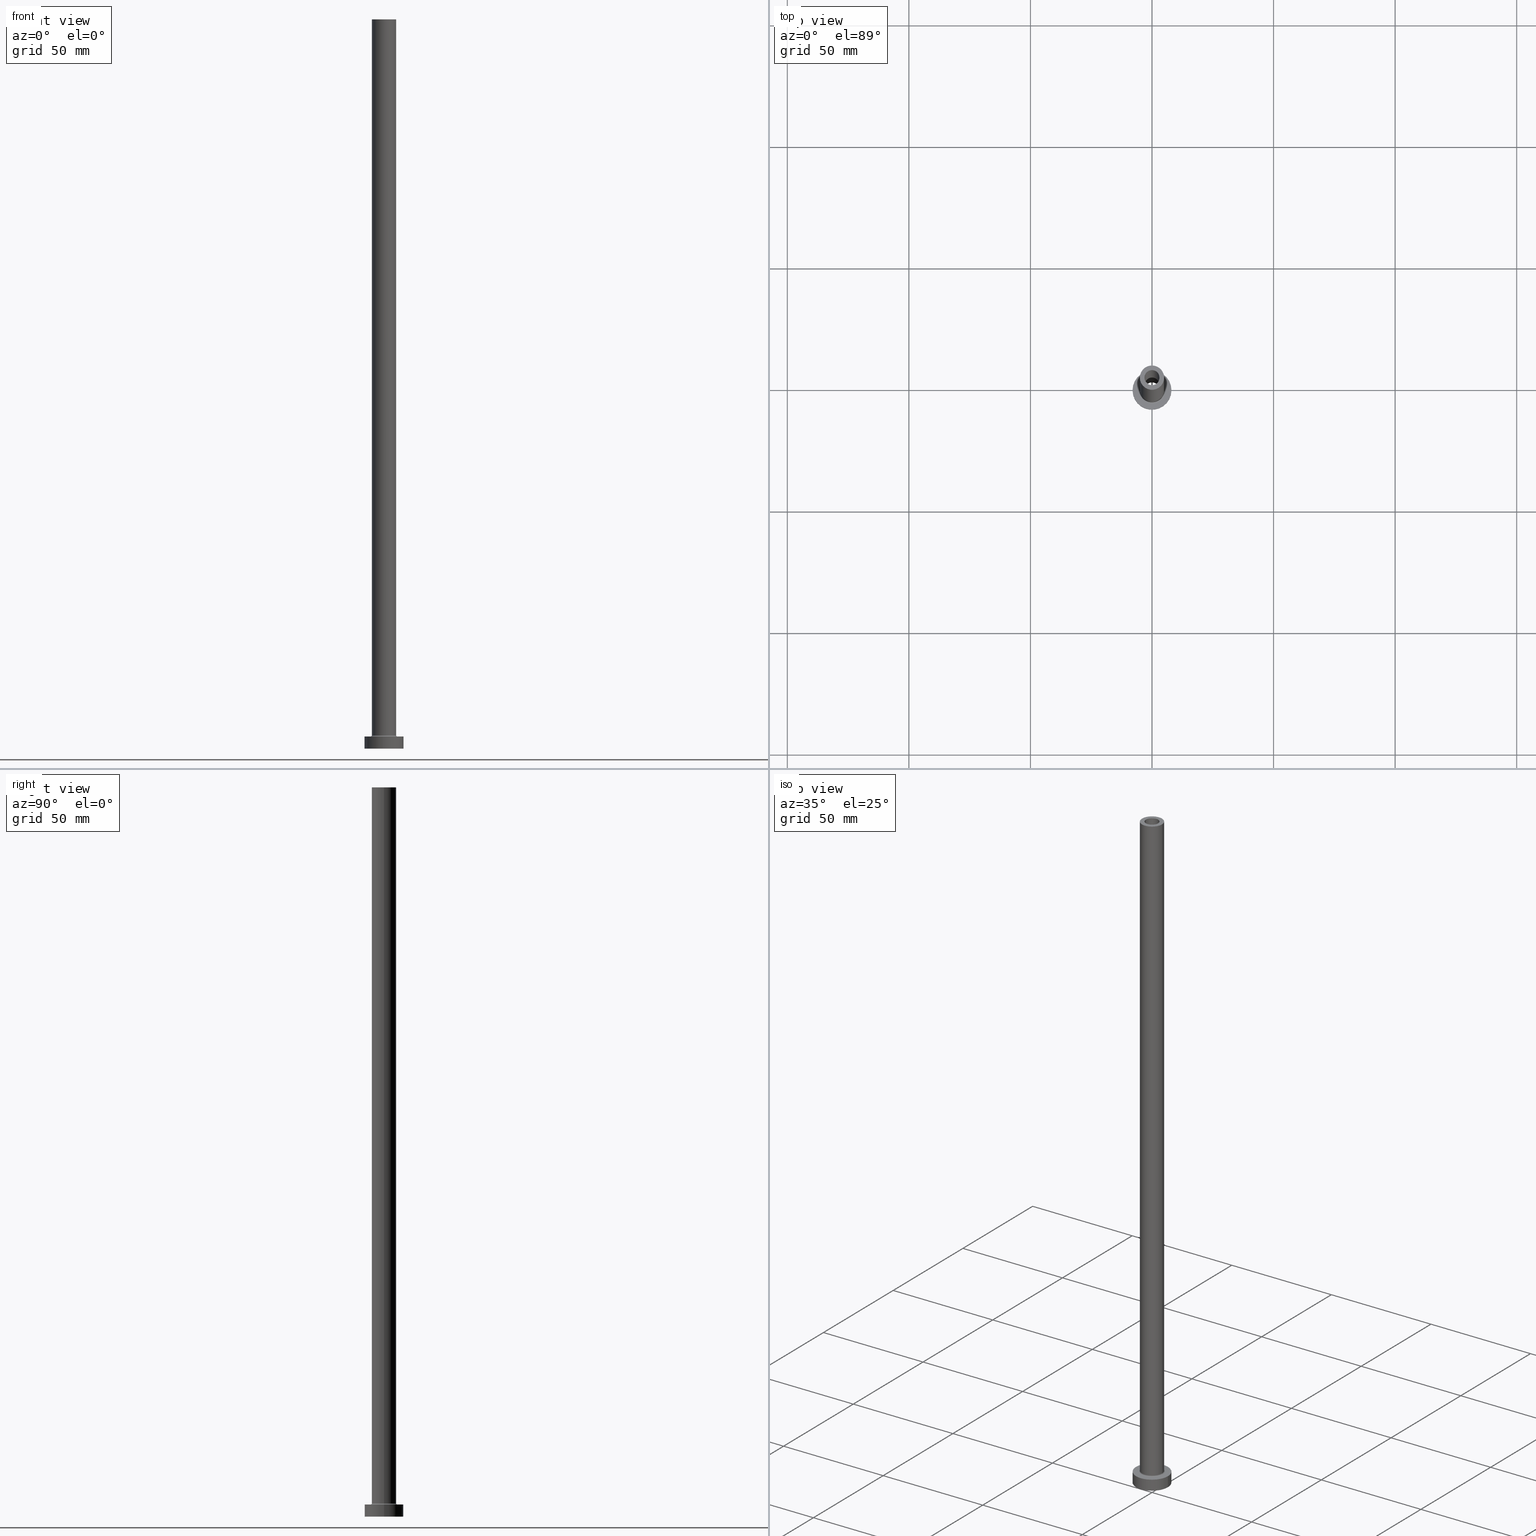
[diagram: canonical four-view strip — front | top / right | iso, engineering-drawing reading convention]
A machine part, canonical four-view strip (front | top / right | iso — engineering-drawing reading convention). The complete STEP part file that produces these views, byte-faithful:
ISO-10303-21;
HEADER;
FILE_DESCRIPTION (( 'STEP AP203' ),
    '1' );
FILE_NAME ('4100.STEP',
    '2023-02-13T14:31:02',
    ( '' ),
    ( '' ),
    'SwSTEP 2.0',
    'SolidWorks 2019',
    '' );
FILE_SCHEMA (( 'CONFIG_CONTROL_DESIGN' ));
ENDSEC;

DATA;
#1 =( NAMED_UNIT ( * ) PLANE_ANGLE_UNIT ( ) SI_UNIT ( $, .RADIAN. ) );
#2 = DIRECTION ( 'NONE',  ( -1.000000000000000000, 0.000000000000000000, 0.000000000000000000 ) ) ;
#3 = DIRECTION ( 'NONE',  ( -1.000000000000000000, 0.000000000000000000, 0.000000000000000000 ) ) ;
#4 = MECHANICAL_CONTEXT ( 'NONE', #278, 'mechanical' ) ;
#5 = DIRECTION ( 'NONE',  ( 0.000000000000000000, 0.000000000000000000, 1.000000000000000000 ) ) ;
#6 = CIRCLE ( 'NONE', #369, 3.250000000000000444 ) ;
#7 = CIRCLE ( 'NONE', #461, 3.250000000000000444 ) ;
#8 = EDGE_CURVE ( 'NONE', #89, #156, #245, .T. ) ;
#9 = DIRECTION ( 'NONE',  ( 1.000000000000000000, 0.000000000000000000, 0.000000000000000000 ) ) ;
#10 = ORIENTED_EDGE ( 'NONE', *, *, #404, .T. ) ;
#11 = DIRECTION ( 'NONE',  ( -0.000000000000000000, -0.000000000000000000, -1.000000000000000000 ) ) ;
#12 = ORIENTED_EDGE ( 'NONE', *, *, #162, .F. ) ;
#13 = EDGE_CURVE ( 'NONE', #120, #277, #287, .T. ) ;
#14 = EDGE_LOOP ( 'NONE', ( #82, #411, #16, #161 ) ) ;
#15 = CIRCLE ( 'NONE', #37, 0.5000000000000004441 ) ;
#16 = ORIENTED_EDGE ( 'NONE', *, *, #205, .T. ) ;
#17 = VERTEX_POINT ( 'NONE', #168 ) ;
#18 = ADVANCED_FACE ( 'NONE', ( #359 ), #32, .F. ) ;
#19 = EDGE_LOOP ( 'NONE', ( #272, #83 ) ) ;
#20 = CC_DESIGN_PERSON_AND_ORGANIZATION_ASSIGNMENT ( #76, #44, ( #105 ) ) ;
#21 = CARTESIAN_POINT ( 'NONE',  ( -5.000000000000000000, 0.000000000000000000, 300.0000000000000000 ) ) ;
#22 = CARTESIAN_POINT ( 'NONE',  ( 8.000000000000000000, 9.797174393178825657E-16, 5.000000000000000000 ) ) ;
#23 = DIRECTION ( 'NONE',  ( 1.000000000000000000, 0.000000000000000000, -0.000000000000000000 ) ) ;
#24 = CYLINDRICAL_SURFACE ( 'NONE', #347, 8.000000000000000000 ) ;
#25 = CYLINDRICAL_SURFACE ( 'NONE', #114, 8.000000000000000000 ) ;
#26 = LINE ( 'NONE', #365, #138 ) ;
#27 = UNCERTAINTY_MEASURE_WITH_UNIT (LENGTH_MEASURE( 1.000000000000000082E-05 ), #385, 'distance_accuracy_value', 'NONE');
#28 = CARTESIAN_POINT ( 'NONE',  ( -3.100000000000000089, 0.000000000000000000, 300.0000000000000000 ) ) ;
#29 = AXIS2_PLACEMENT_3D ( 'NONE', #417, #320, #323 ) ;
#30 = DIRECTION ( 'NONE',  ( 1.224646799147353207E-16, 1.000000000000000000, -0.000000000000000000 ) ) ;
#31 = DIRECTION ( 'NONE',  ( 0.000000000000000000, -1.000000000000000000, 0.000000000000000000 ) ) ;
#32 = CYLINDRICAL_SURFACE ( 'NONE', #428, 3.250000000000000444 ) ;
#33 = EDGE_CURVE ( 'NONE', #235, #117, #134, .T. ) ;
#34 = CARTESIAN_POINT ( 'NONE',  ( 0.000000000000000000, 0.000000000000000000, 0.000000000000000000 ) ) ;
#35 = DATE_TIME_ROLE ( 'creation_date' ) ;
#36 = CARTESIAN_POINT ( 'NONE',  ( 0.000000000000000000, 0.000000000000000000, 264.1923881554251352 ) ) ;
#37 = AXIS2_PLACEMENT_3D ( 'NONE', #420, #30, #427 ) ;
#38 = APPROVAL_PERSON_ORGANIZATION ( #296, #459, #39 ) ;
#39 = APPROVAL_ROLE ( '' ) ;
#40 = DIRECTION ( 'NONE',  ( 1.000000000000000000, 0.000000000000000000, 0.000000000000000000 ) ) ;
#41 = DATE_AND_TIME ( #432, #174 ) ;
#42 = DIRECTION ( 'NONE',  ( 1.000000000000000000, 0.000000000000000000, 0.000000000000000000 ) ) ;
#43 = ADVANCED_FACE ( 'NONE', ( #210, #248 ), #425, .T. ) ;
#44 = PERSON_AND_ORGANIZATION_ROLE ( 'creator' ) ;
#45 = DIRECTION ( 'NONE',  ( 1.000000000000000000, 0.000000000000000000, 0.000000000000000000 ) ) ;
#46 = VECTOR ( 'NONE', #360, 1000.000000000000000 ) ;
#47 = ORGANIZATION ( 'NEUR�EN�', 'NEUR�EN�', '' ) ;
#48 = CARTESIAN_POINT ( 'NONE',  ( 5.000000000000000000, 6.123233995736766282E-16, 300.0000000000000000 ) ) ;
#49 = SECURITY_CLASSIFICATION_LEVEL ( 'unclassified' ) ;
#50 = EDGE_CURVE ( 'NONE', #439, #386, #26, .T. ) ;
#51 = DIRECTION ( 'NONE',  ( -0.000000000000000000, -0.000000000000000000, -1.000000000000000000 ) ) ;
#52 = ORIENTED_EDGE ( 'NONE', *, *, #13, .T. ) ;
#53 = CC_DESIGN_PERSON_AND_ORGANIZATION_ASSIGNMENT ( #285, #426, ( #70 ) ) ;
#54 = ORIENTED_EDGE ( 'NONE', *, *, #382, .F. ) ;
#55 = AXIS2_PLACEMENT_3D ( 'NONE', #268, #51, #410 ) ;
#56 = EDGE_LOOP ( 'NONE', ( #304, #207, #383, #183 ) ) ;
#57 = ORIENTED_EDGE ( 'NONE', *, *, #260, .T. ) ;
#58 = ADVANCED_FACE ( 'NONE', ( #171 ), #125, .F. ) ;
#59 = DIRECTION ( 'NONE',  ( -0.000000000000000000, -0.000000000000000000, -1.000000000000000000 ) ) ;
#60 = CIRCLE ( 'NONE', #322, 5.500000000000000000 ) ;
#61 = FACE_OUTER_BOUND ( 'NONE', #333, .T. ) ;
#62 = CARTESIAN_POINT ( 'NONE',  ( -3.100000000000000089, 0.000000000000000000, 255.0000000000000000 ) ) ;
#63 = CARTESIAN_POINT ( 'NONE',  ( 0.000000000000000000, 0.000000000000000000, 300.0000000000000000 ) ) ;
#64 = DIRECTION ( 'NONE',  ( -0.000000000000000000, -0.000000000000000000, -1.000000000000000000 ) ) ;
#65 = DIRECTION ( 'NONE',  ( 0.000000000000000000, 0.000000000000000000, -1.000000000000000000 ) ) ;
#66 = CARTESIAN_POINT ( 'NONE',  ( 0.000000000000000000, 0.000000000000000000, 5.000000000000000000 ) ) ;
#67 = DIRECTION ( 'NONE',  ( -1.000000000000000000, 0.000000000000000000, 0.000000000000000000 ) ) ;
#68 = CIRCLE ( 'NONE', #381, 5.000000000000000000 ) ;
#69 = CARTESIAN_POINT ( 'NONE',  ( 0.000000000000000000, 0.000000000000000000, 0.000000000000000000 ) ) ;
#70 = PRODUCT_DEFINITION_FORMATION_WITH_SPECIFIED_SOURCE ( 'LIBOVOLN�', '', #80, .NOT_KNOWN. ) ;
#71 = DIRECTION ( 'NONE',  ( -0.000000000000000000, -0.000000000000000000, -1.000000000000000000 ) ) ;
#72 = CARTESIAN_POINT ( 'NONE',  ( 5.000000000000000000, 6.123233995736766282E-16, 300.0000000000000000 ) ) ;
#73 = CIRCLE ( 'NONE', #221, 3.250000000000000444 ) ;
#74 = ORIENTED_EDGE ( 'NONE', *, *, #416, .T. ) ;
#75 = LOCAL_TIME ( 15, 31, 2.000000000000000000, #225 ) ;
#76 = PERSON_AND_ORGANIZATION ( #396, #47 ) ;
#77 = APPLICATION_CONTEXT ( 'configuration controlled 3d designs of mechanical parts and assemblies' ) ;
#78 = CARTESIAN_POINT ( 'NONE',  ( 8.000000000000000000, 9.797174393178825657E-16, 0.000000000000000000 ) ) ;
#79 = AXIS2_PLACEMENT_3D ( 'NONE', #110, #328, #429 ) ;
#80 = PRODUCT ( '4100', '4100', '', ( #4 ) ) ;
#81 = SHAPE_DEFINITION_REPRESENTATION ( #204, #331 ) ;
#82 = ORIENTED_EDGE ( 'NONE', *, *, #398, .F. ) ;
#83 = ORIENTED_EDGE ( 'NONE', *, *, #398, .T. ) ;
#84 = ORIENTED_EDGE ( 'NONE', *, *, #281, .T. ) ;
#85 = VECTOR ( 'NONE', #452, 1000.000000000000000 ) ;
#86 = PERSON_AND_ORGANIZATION_ROLE ( 'classification_officer' ) ;
#87 = APPROVAL_PERSON_ORGANIZATION ( #350, #185, #231 ) ;
#88 = ADVANCED_FACE ( 'NONE', ( #280 ), #327, .F. ) ;
#89 = VERTEX_POINT ( 'NONE', #62 ) ;
#90 = EDGE_LOOP ( 'NONE', ( #203, #141 ) ) ;
#91 = DIRECTION ( 'NONE',  ( 1.000000000000000000, 0.000000000000000000, 0.000000000000000000 ) ) ;
#92 = CARTESIAN_POINT ( 'NONE',  ( 0.000000000000000000, 0.000000000000000000, 0.000000000000000000 ) ) ;
#93 = EDGE_CURVE ( 'NONE', #386, #414, #15, .T. ) ;
#94 = CIRCLE ( 'NONE', #79, 3.100000000000000089 ) ;
#95 = DIRECTION ( 'NONE',  ( 0.000000000000000000, 0.000000000000000000, 1.000000000000000000 ) ) ;
#96 = ORIENTED_EDGE ( 'NONE', *, *, #119, .T. ) ;
#97 = CARTESIAN_POINT ( 'NONE',  ( 0.000000000000000000, 0.000000000000000000, 300.0000000000000000 ) ) ;
#98 = EDGE_LOOP ( 'NONE', ( #437, #74, #353, #54 ) ) ;
#99 = DIRECTION ( 'NONE',  ( 1.000000000000000000, 0.000000000000000000, 0.000000000000000000 ) ) ;
#100 = DIRECTION ( 'NONE',  ( -1.000000000000000000, 0.000000000000000000, 0.000000000000000000 ) ) ;
#101 = VECTOR ( 'NONE', #142, 1000.000000000000000 ) ;
#102 = FACE_OUTER_BOUND ( 'NONE', #14, .T. ) ;
#103 = VERTEX_POINT ( 'NONE', #422 ) ;
#104 = CYLINDRICAL_SURFACE ( 'NONE', #454, 3.250000000000000444 ) ;
#105 = PRODUCT_DEFINITION ( 'NEZN�M�', '', #70, #164 ) ;
#106 = APPLICATION_PROTOCOL_DEFINITION ( 'international standard', 'config_control_design', 1994, #278 ) ;
#107 = AXIS2_PLACEMENT_3D ( 'NONE', #263, #196, #236 ) ;
#108 = PRODUCT_RELATED_PRODUCT_CATEGORY ( 'detail', '', ( #80 ) ) ;
#109 = FACE_OUTER_BOUND ( 'NONE', #376, .T. ) ;
#110 = CARTESIAN_POINT ( 'NONE',  ( 0.000000000000000000, 0.000000000000000000, 255.0000000000000000 ) ) ;
#111 = EDGE_CURVE ( 'NONE', #275, #117, #6, .T. ) ;
#112 = FACE_OUTER_BOUND ( 'NONE', #233, .T. ) ;
#113 = ORIENTED_EDGE ( 'NONE', *, *, #199, .T. ) ;
#114 = AXIS2_PLACEMENT_3D ( 'NONE', #247, #173, #390 ) ;
#115 = CC_DESIGN_APPROVAL ( #185, ( #442 ) ) ;
#116 = ORIENTED_EDGE ( 'NONE', *, *, #13, .F. ) ;
#117 = VERTEX_POINT ( 'NONE', #178 ) ;
#118 = COORDINATED_UNIVERSAL_TIME_OFFSET ( 1, 0, .AHEAD. ) ;
#119 = EDGE_CURVE ( 'NONE', #444, #277, #208, .T. ) ;
#120 = VERTEX_POINT ( 'NONE', #22 ) ;
#121 = AXIS2_PLACEMENT_3D ( 'NONE', #97, #95, #91 ) ;
#122 = FACE_OUTER_BOUND ( 'NONE', #230, .T. ) ;
#123 = ORIENTED_EDGE ( 'NONE', *, *, #8, .T. ) ;
#124 = LINE ( 'NONE', #241, #85 ) ;
#125 = CYLINDRICAL_SURFACE ( 'NONE', #441, 3.100000000000000089 ) ;
#126 = ADVANCED_FACE ( 'NONE', ( #102 ), #356, .T. ) ;
#127 = PLANE ( 'NONE',  #313 ) ;
#128 = DIRECTION ( 'NONE',  ( 0.000000000000000000, 0.000000000000000000, 1.000000000000000000 ) ) ;
#129 = AXIS2_PLACEMENT_3D ( 'NONE', #254, #59, #451 ) ;
#130 = DIRECTION ( 'NONE',  ( 1.000000000000000000, 0.000000000000000000, 0.000000000000000000 ) ) ;
#131 = CC_DESIGN_SECURITY_CLASSIFICATION ( #442, ( #70 ) ) ;
#132 = DIRECTION ( 'NONE',  ( -0.000000000000000000, -0.000000000000000000, -1.000000000000000000 ) ) ;
#133 = CYLINDRICAL_SURFACE ( 'NONE', #246, 5.000000000000000000 ) ;
#134 = LINE ( 'NONE', #453, #440 ) ;
#135 = PERSON_AND_ORGANIZATION ( #396, #47 ) ;
#136 = EDGE_CURVE ( 'NONE', #117, #275, #73, .T. ) ;
#137 = DIRECTION ( 'NONE',  ( 1.000000000000000000, 0.000000000000000000, 0.000000000000000000 ) ) ;
#138 = VECTOR ( 'NONE', #132, 1000.000000000000000 ) ;
#139 = LOCAL_TIME ( 15, 31, 2.000000000000000000, #118 ) ;
#140 = CARTESIAN_POINT ( 'NONE',  ( -3.250000000000000444, 0.000000000000000000, 255.0000000000000000 ) ) ;
#141 = ORIENTED_EDGE ( 'NONE', *, *, #295, .T. ) ;
#142 = DIRECTION ( 'NONE',  ( -0.000000000000000000, -0.000000000000000000, -1.000000000000000000 ) ) ;
#143 = ADVANCED_FACE ( 'NONE', ( #357 ), #24, .T. ) ;
#144 = ORIENTED_EDGE ( 'NONE', *, *, #213, .T. ) ;
#145 = CARTESIAN_POINT ( 'NONE',  ( 0.000000000000000000, 0.000000000000000000, 0.000000000000000000 ) ) ;
#146 = DIRECTION ( 'NONE',  ( 0.000000000000000000, 0.000000000000000000, 1.000000000000000000 ) ) ;
#147 = CIRCLE ( 'NONE', #330, 5.000000000000000000 ) ;
#148 = ORIENTED_EDGE ( 'NONE', *, *, #199, .F. ) ;
#149 = AXIS2_PLACEMENT_3D ( 'NONE', #167, #421, #99 ) ;
#150 = DATE_TIME_ROLE ( 'classification_date' ) ;
#151 = ORIENTED_EDGE ( 'NONE', *, *, #213, .F. ) ;
#152 = CC_DESIGN_DATE_AND_TIME_ASSIGNMENT ( #41, #35, ( #105 ) ) ;
#153 = DIRECTION ( 'NONE',  ( 0.000000000000000000, 0.000000000000000000, 1.000000000000000000 ) ) ;
#154 = VERTEX_POINT ( 'NONE', #224 ) ;
#155 = FACE_BOUND ( 'NONE', #265, .T. ) ;
#156 = VERTEX_POINT ( 'NONE', #374 ) ;
#157 = AXIS2_PLACEMENT_3D ( 'NONE', #69, #418, #137 ) ;
#158 = CC_DESIGN_APPROVAL ( #342, ( #70 ) ) ;
#159 = MANIFOLD_SOLID_BREP ( 'Odebrat vysunut�m4', #305 ) ;
#160 = CARTESIAN_POINT ( 'NONE',  ( 3.250000000000000444, 3.980102097228898231E-16, 264.1923881554251352 ) ) ;
#161 = ORIENTED_EDGE ( 'NONE', *, *, #50, .F. ) ;
#162 = EDGE_CURVE ( 'NONE', #120, #450, #297, .T. ) ;
#163 = EDGE_LOOP ( 'NONE', ( #384, #237, #250, #308 ) ) ;
#164 = DESIGN_CONTEXT ( 'detailed design', #77, 'design' ) ;
#165 = ORIENTED_EDGE ( 'NONE', *, *, #382, .T. ) ;
#166 = AXIS2_PLACEMENT_3D ( 'NONE', #291, #335, #436 ) ;
#167 = CARTESIAN_POINT ( 'NONE',  ( 0.000000000000000000, 0.000000000000000000, 300.0000000000000000 ) ) ;
#168 = CARTESIAN_POINT ( 'NONE',  ( 5.500000000000000000, 0.000000000000000000, 5.000000000000002665 ) ) ;
#169 = EDGE_LOOP ( 'NONE', ( #116, #186, #57, #96 ) ) ;
#170 = CARTESIAN_POINT ( 'NONE',  ( 0.000000000000000000, 0.000000000000000000, 5.500000000000005329 ) ) ;
#171 = FACE_OUTER_BOUND ( 'NONE', #98, .T. ) ;
#172 = AXIS2_PLACEMENT_3D ( 'NONE', #407, #234, #198 ) ;
#173 = DIRECTION ( 'NONE',  ( -0.000000000000000000, -0.000000000000000000, -1.000000000000000000 ) ) ;
#174 = LOCAL_TIME ( 15, 31, 2.000000000000000000, #223 ) ;
#175 = DIRECTION ( 'NONE',  ( 1.000000000000000000, 0.000000000000000000, -0.000000000000000000 ) ) ;
#176 = EDGE_CURVE ( 'NONE', #235, #154, #7, .T. ) ;
#177 = CARTESIAN_POINT ( 'NONE',  ( 0.000000000000000000, 0.000000000000000000, 300.0000000000000000 ) ) ;
#178 = CARTESIAN_POINT ( 'NONE',  ( -3.250000000000000444, 0.000000000000000000, 0.000000000000000000 ) ) ;
#179 = PERSON_AND_ORGANIZATION_ROLE ( 'creator' ) ;
#180 = CIRCLE ( 'NONE', #149, 5.000000000000000000 ) ;
#181 = EDGE_CURVE ( 'NONE', #154, #235, #307, .T. ) ;
#182 = DIRECTION ( 'NONE',  ( 0.000000000000000000, 0.000000000000000000, 1.000000000000000000 ) ) ;
#183 = ORIENTED_EDGE ( 'NONE', *, *, #404, .F. ) ;
#184 = CALENDAR_DATE ( 2023, 13, 2 ) ;
#185 = APPROVAL ( #270, 'NEUR�EN�' ) ;
#186 = ORIENTED_EDGE ( 'NONE', *, *, #281, .F. ) ;
#187 = APPLICATION_PROTOCOL_DEFINITION ( 'international standard', 'config_control_design', 1994, #77 ) ;
#188 = CARTESIAN_POINT ( 'NONE',  ( 0.000000000000000000, 0.000000000000000000, 255.0000000000000000 ) ) ;
#189 = APPROVAL_DATE_TIME ( #366, #342 ) ;
#190 = CARTESIAN_POINT ( 'NONE',  ( 0.000000000000000000, 0.000000000000000000, 5.000000000000000000 ) ) ;
#191 = AXIS2_PLACEMENT_3D ( 'NONE', #316, #321, #100 ) ;
#192 = AXIS2_PLACEMENT_3D ( 'NONE', #145, #217, #399 ) ;
#193 = CALENDAR_DATE ( 2023, 13, 2 ) ;
#194 = EDGE_LOOP ( 'NONE', ( #219, #344 ) ) ;
#195 = COORDINATED_UNIVERSAL_TIME_OFFSET ( 1, 0, .AHEAD. ) ;
#196 = DIRECTION ( 'NONE',  ( 0.000000000000000000, 0.000000000000000000, 1.000000000000000000 ) ) ;
#197 = ORIENTED_EDGE ( 'NONE', *, *, #181, .T. ) ;
#198 = DIRECTION ( 'NONE',  ( 1.000000000000000000, 0.000000000000000000, -0.000000000000000000 ) ) ;
#199 = EDGE_CURVE ( 'NONE', #156, #89, #94, .T. ) ;
#200 = ORIENTED_EDGE ( 'NONE', *, *, #295, .F. ) ;
#201 = AXIS2_PLACEMENT_3D ( 'NONE', #34, #182, #298 ) ;
#202 = VERTEX_POINT ( 'NONE', #72 ) ;
#203 = ORIENTED_EDGE ( 'NONE', *, *, #312, .T. ) ;
#204 = PRODUCT_DEFINITION_SHAPE ( 'NONE', 'NONE',  #105 ) ;
#205 = EDGE_CURVE ( 'NONE', #314, #386, #68, .T. ) ;
#206 = DIRECTION ( 'NONE',  ( 0.000000000000000000, 0.000000000000000000, 1.000000000000000000 ) ) ;
#207 = ORIENTED_EDGE ( 'NONE', *, *, #93, .T. ) ;
#208 = CIRCLE ( 'NONE', #157, 8.000000000000000000 ) ;
#209 = DIRECTION ( 'NONE',  ( 1.000000000000000000, 0.000000000000000000, 0.000000000000000000 ) ) ;
#210 = FACE_BOUND ( 'NONE', #90, .T. ) ;
#211 = FACE_OUTER_BOUND ( 'NONE', #56, .T. ) ;
#212 = DIRECTION ( 'NONE',  ( -1.000000000000000000, 0.000000000000000000, 0.000000000000000000 ) ) ;
#213 = EDGE_CURVE ( 'NONE', #277, #444, #375, .T. ) ;
#214 = AXIS2_PLACEMENT_3D ( 'NONE', #243, #31, #457 ) ;
#215 = CARTESIAN_POINT ( 'NONE',  ( 0.000000000000000000, 0.000000000000000000, 255.0000000000000000 ) ) ;
#216 = PERSON_AND_ORGANIZATION ( #396, #47 ) ;
#217 = DIRECTION ( 'NONE',  ( 0.000000000000000000, 0.000000000000000000, 1.000000000000000000 ) ) ;
#218 = CARTESIAN_POINT ( 'NONE',  ( 0.000000000000000000, 0.000000000000000000, 5.500000000000005329 ) ) ;
#219 = ORIENTED_EDGE ( 'NONE', *, *, #136, .F. ) ;
#220 = CALENDAR_DATE ( 2023, 13, 2 ) ;
#221 = AXIS2_PLACEMENT_3D ( 'NONE', #92, #244, #209 ) ;
#222 = DIRECTION ( 'NONE',  ( 1.000000000000000000, 0.000000000000000000, 0.000000000000000000 ) ) ;
#223 = COORDINATED_UNIVERSAL_TIME_OFFSET ( 1, 0, .AHEAD. ) ;
#224 = CARTESIAN_POINT ( 'NONE',  ( 3.250000000000000444, 3.980102097228898231E-16, 255.0000000000000000 ) ) ;
#225 = COORDINATED_UNIVERSAL_TIME_OFFSET ( 1, 0, .AHEAD. ) ;
#226 = FACE_OUTER_BOUND ( 'NONE', #163, .T. ) ;
#227 = ADVANCED_FACE ( 'NONE', ( #226 ), #104, .F. ) ;
#228 = VECTOR ( 'NONE', #11, 1000.000000000000000 ) ;
#229 = LOCAL_TIME ( 15, 31, 2.000000000000000000, #402 ) ;
#230 = EDGE_LOOP ( 'NONE', ( #299, #290 ) ) ;
#231 = APPROVAL_ROLE ( '' ) ;
#232 = PLANE ( 'NONE',  #107 ) ;
#233 = EDGE_LOOP ( 'NONE', ( #446, #151 ) ) ;
#234 = DIRECTION ( 'NONE',  ( 0.000000000000000000, 0.000000000000000000, 1.000000000000000000 ) ) ;
#235 = VERTEX_POINT ( 'NONE', #140 ) ;
#236 = DIRECTION ( 'NONE',  ( 1.000000000000000000, 0.000000000000000000, -0.000000000000000000 ) ) ;
#237 = ORIENTED_EDGE ( 'NONE', *, *, #339, .T. ) ;
#238 = TOROIDAL_SURFACE ( 'NONE', #29, 5.500000000000000000, 0.5000000000000000000 ) ;
#239 = DIRECTION ( 'NONE',  ( 1.000000000000000000, 0.000000000000000000, 0.000000000000000000 ) ) ;
#240 = ORIENTED_EDGE ( 'NONE', *, *, #50, .T. ) ;
#241 = CARTESIAN_POINT ( 'NONE',  ( -3.100000000000000089, 0.000000000000000000, 300.0000000000000000 ) ) ;
#242 = ORIENTED_EDGE ( 'NONE', *, *, #303, .F. ) ;
#243 = CARTESIAN_POINT ( 'NONE',  ( 5.500000000000000000, 0.000000000000000000, 5.500000000000005329 ) ) ;
#244 = DIRECTION ( 'NONE',  ( -0.000000000000000000, -0.000000000000000000, -1.000000000000000000 ) ) ;
#245 = CIRCLE ( 'NONE', #388, 3.100000000000000089 ) ;
#246 = AXIS2_PLACEMENT_3D ( 'NONE', #63, #358, #67 ) ;
#247 = CARTESIAN_POINT ( 'NONE',  ( 0.000000000000000000, 0.000000000000000000, 5.000000000000000000 ) ) ;
#248 = FACE_OUTER_BOUND ( 'NONE', #267, .T. ) ;
#249 = CARTESIAN_POINT ( 'NONE',  ( -8.000000000000000000, 0.000000000000000000, 0.000000000000000000 ) ) ;
#250 = ORIENTED_EDGE ( 'NONE', *, *, #111, .T. ) ;
#251 = LINE ( 'NONE', #276, #46 ) ;
#252 = DIRECTION ( 'NONE',  ( 1.000000000000000000, 0.000000000000000000, 0.000000000000000000 ) ) ;
#253 = TOROIDAL_SURFACE ( 'NONE', #355, 5.500000000000000000, 0.5000000000000000000 ) ;
#254 = CARTESIAN_POINT ( 'NONE',  ( 0.000000000000000000, 0.000000000000000000, 300.0000000000000000 ) ) ;
#255 = CC_DESIGN_PERSON_AND_ORGANIZATION_ASSIGNMENT ( #292, #334, ( #80 ) ) ;
#256 =( NAMED_UNIT ( * ) SI_UNIT ( $, .STERADIAN. ) SOLID_ANGLE_UNIT ( ) );
#257 = APPROVAL_STATUS ( 'not_yet_approved' ) ;
#258 = AXIS2_PLACEMENT_3D ( 'NONE', #190, #338, #9 ) ;
#259 = APPROVAL_STATUS ( 'not_yet_approved' ) ;
#260 = EDGE_CURVE ( 'NONE', #450, #444, #433, .T. ) ;
#261 = CARTESIAN_POINT ( 'NONE',  ( 3.250000000000000444, 3.980102097228898231E-16, 0.000000000000000000 ) ) ;
#262 = PERSON_AND_ORGANIZATION ( #396, #47 ) ;
#263 = CARTESIAN_POINT ( 'NONE',  ( 0.000000000000000000, 0.000000000000000000, 0.000000000000000000 ) ) ;
#264 = CIRCLE ( 'NONE', #448, 3.100000000000000089 ) ;
#265 = EDGE_LOOP ( 'NONE', ( #242, #380 ) ) ;
#266 = ADVANCED_FACE ( 'NONE', ( #109 ), #253, .F. ) ;
#267 = EDGE_LOOP ( 'NONE', ( #84, #434 ) ) ;
#268 = CARTESIAN_POINT ( 'NONE',  ( 0.000000000000000000, 0.000000000000000000, 5.000000000000000000 ) ) ;
#269 = EDGE_LOOP ( 'NONE', ( #12, #52, #144, #294 ) ) ;
#270 = APPROVAL_STATUS ( 'not_yet_approved' ) ;
#271 = DIRECTION ( 'NONE',  ( 1.000000000000000000, 0.000000000000000000, 0.000000000000000000 ) ) ;
#272 = ORIENTED_EDGE ( 'NONE', *, *, #456, .T. ) ;
#273 = AXIS2_PLACEMENT_3D ( 'NONE', #170, #387, #130 ) ;
#274 = CARTESIAN_POINT ( 'NONE',  ( -5.000000000000000000, 0.000000000000000000, 5.500000000000005329 ) ) ;
#275 = VERTEX_POINT ( 'NONE', #261 ) ;
#276 = CARTESIAN_POINT ( 'NONE',  ( 3.100000000000000089, 3.796405077356793932E-16, 300.0000000000000000 ) ) ;
#277 = VERTEX_POINT ( 'NONE', #78 ) ;
#278 = APPLICATION_CONTEXT ( 'configuration controlled 3d designs of mechanical parts and assemblies' ) ;
#279 = CARTESIAN_POINT ( 'NONE',  ( -5.500000000000000000, 6.735557395310442023E-16, 5.000000000000002665 ) ) ;
#280 = FACE_OUTER_BOUND ( 'NONE', #309, .T. ) ;
#281 = EDGE_CURVE ( 'NONE', #450, #120, #288, .T. ) ;
#282 = CARTESIAN_POINT ( 'NONE',  ( 0.000000000000000000, 0.000000000000000000, 300.0000000000000000 ) ) ;
#283 = FACE_OUTER_BOUND ( 'NONE', #269, .T. ) ;
#284 = CARTESIAN_POINT ( 'NONE',  ( 0.000000000000000000, 0.000000000000000000, 0.000000000000000000 ) ) ;
#285 = PERSON_AND_ORGANIZATION ( #396, #47 ) ;
#286 = EDGE_CURVE ( 'NONE', #202, #314, #301, .T. ) ;
#287 = LINE ( 'NONE', #458, #447 ) ;
#288 = CIRCLE ( 'NONE', #258, 8.000000000000000000 ) ;
#289 = DIRECTION ( 'NONE',  ( 0.000000000000000000, 0.000000000000000000, 1.000000000000000000 ) ) ;
#290 = ORIENTED_EDGE ( 'NONE', *, *, #181, .F. ) ;
#291 = CARTESIAN_POINT ( 'NONE',  ( 0.000000000000000000, 0.000000000000000000, 5.000000000000000000 ) ) ;
#292 = PERSON_AND_ORGANIZATION ( #396, #47 ) ;
#293 = CARTESIAN_POINT ( 'NONE',  ( 0.000000000000000000, 0.000000000000000000, 5.000000000000000000 ) ) ;
#294 = ORIENTED_EDGE ( 'NONE', *, *, #260, .F. ) ;
#295 = EDGE_CURVE ( 'NONE', #414, #17, #337, .T. ) ;
#296 = PERSON_AND_ORGANIZATION ( #396, #47 ) ;
#297 = CIRCLE ( 'NONE', #166, 8.000000000000000000 ) ;
#298 = DIRECTION ( 'NONE',  ( 1.000000000000000000, 0.000000000000000000, 0.000000000000000000 ) ) ;
#299 = ORIENTED_EDGE ( 'NONE', *, *, #176, .F. ) ;
#300 = CC_DESIGN_PERSON_AND_ORGANIZATION_ASSIGNMENT ( #135, #179, ( #70 ) ) ;
#301 = LINE ( 'NONE', #48, #228 ) ;
#302 = CARTESIAN_POINT ( 'NONE',  ( 5.000000000000000000, 6.123233995736766282E-16, 5.500000000000005329 ) ) ;
#303 = EDGE_CURVE ( 'NONE', #379, #103, #264, .T. ) ;
#304 = ORIENTED_EDGE ( 'NONE', *, *, #409, .F. ) ;
#305 = CLOSED_SHELL ( 'NONE', ( #58, #227, #371, #126, #435, #143, #43, #319, #449, #325, #266, #18, #424, #88 ) ) ;
#306 = FACE_OUTER_BOUND ( 'NONE', #19, .T. ) ;
#307 = CIRCLE ( 'NONE', #400, 3.250000000000000444 ) ;
#308 = ORIENTED_EDGE ( 'NONE', *, *, #33, .F. ) ;
#309 = EDGE_LOOP ( 'NONE', ( #408, #311, #165, #148 ) ) ;
#310 = DATE_AND_TIME ( #377, #363 ) ;
#311 = ORIENTED_EDGE ( 'NONE', *, *, #394, .T. ) ;
#312 = EDGE_CURVE ( 'NONE', #17, #414, #60, .T. ) ;
#313 = AXIS2_PLACEMENT_3D ( 'NONE', #419, #326, #23 ) ;
#314 = VERTEX_POINT ( 'NONE', #302 ) ;
#315 = CC_DESIGN_DATE_AND_TIME_ASSIGNMENT ( #345, #150, ( #442 ) ) ;
#316 = CARTESIAN_POINT ( 'NONE',  ( 0.000000000000000000, 0.000000000000000000, 300.0000000000000000 ) ) ;
#317 = DIRECTION ( 'NONE',  ( 1.000000000000000000, 0.000000000000000000, 0.000000000000000000 ) ) ;
#318 = DIRECTION ( 'NONE',  ( 0.000000000000000000, 0.000000000000000000, 1.000000000000000000 ) ) ;
#319 = ADVANCED_FACE ( 'NONE', ( #343, #112 ), #232, .F. ) ;
#320 = DIRECTION ( 'NONE',  ( 0.000000000000000000, 0.000000000000000000, 1.000000000000000000 ) ) ;
#321 = DIRECTION ( 'NONE',  ( 0.000000000000000000, 0.000000000000000000, -1.000000000000000000 ) ) ;
#322 = AXIS2_PLACEMENT_3D ( 'NONE', #378, #438, #239 ) ;
#323 = DIRECTION ( 'NONE',  ( 1.000000000000000000, 0.000000000000000000, 0.000000000000000000 ) ) ;
#324 = DIRECTION ( 'NONE',  ( 1.000000000000000000, 0.000000000000000000, 0.000000000000000000 ) ) ;
#325 = ADVANCED_FACE ( 'NONE', ( #155, #306 ), #443, .T. ) ;
#326 = DIRECTION ( 'NONE',  ( 0.000000000000000000, 0.000000000000000000, 1.000000000000000000 ) ) ;
#327 = CYLINDRICAL_SURFACE ( 'NONE', #191, 3.100000000000000089 ) ;
#328 = DIRECTION ( 'NONE',  ( 0.000000000000000000, 0.000000000000000000, 1.000000000000000000 ) ) ;
#329 = ORIENTED_EDGE ( 'NONE', *, *, #456, .F. ) ;
#330 = AXIS2_PLACEMENT_3D ( 'NONE', #177, #206, #317 ) ;
#331 = ADVANCED_BREP_SHAPE_REPRESENTATION ( '4100', ( #159, #192 ), #413 ) ;
#332 = CARTESIAN_POINT ( 'NONE',  ( -8.000000000000000000, 0.000000000000000000, 5.000000000000000000 ) ) ;
#333 = EDGE_LOOP ( 'NONE', ( #406, #329, #240, #340 ) ) ;
#334 = PERSON_AND_ORGANIZATION_ROLE ( 'design_owner' ) ;
#335 = DIRECTION ( 'NONE',  ( 0.000000000000000000, 0.000000000000000000, 1.000000000000000000 ) ) ;
#336 = ORIENTED_EDGE ( 'NONE', *, *, #33, .T. ) ;
#337 = CIRCLE ( 'NONE', #55, 5.500000000000000000 ) ;
#338 = DIRECTION ( 'NONE',  ( 0.000000000000000000, 0.000000000000000000, 1.000000000000000000 ) ) ;
#339 = EDGE_CURVE ( 'NONE', #154, #275, #346, .T. ) ;
#340 = ORIENTED_EDGE ( 'NONE', *, *, #409, .T. ) ;
#341 = APPROVAL_DATE_TIME ( #310, #185 ) ;
#342 = APPROVAL ( #259, 'NEUR�EN�' ) ;
#343 = FACE_BOUND ( 'NONE', #194, .T. ) ;
#344 = ORIENTED_EDGE ( 'NONE', *, *, #111, .F. ) ;
#345 = DATE_AND_TIME ( #193, #139 ) ;
#346 = LINE ( 'NONE', #160, #405 ) ;
#347 = AXIS2_PLACEMENT_3D ( 'NONE', #293, #71, #3 ) ;
#348 = APPROVAL_PERSON_ORGANIZATION ( #216, #342, #370 ) ;
#349 = ORIENTED_EDGE ( 'NONE', *, *, #136, .T. ) ;
#350 = PERSON_AND_ORGANIZATION ( #396, #47 ) ;
#351 = CARTESIAN_POINT ( 'NONE',  ( 0.000000000000000000, 0.000000000000000000, 300.0000000000000000 ) ) ;
#352 = ORIENTED_EDGE ( 'NONE', *, *, #339, .F. ) ;
#353 = ORIENTED_EDGE ( 'NONE', *, *, #8, .F. ) ;
#354 = AXIS2_PLACEMENT_3D ( 'NONE', #66, #318, #175 ) ;
#355 = AXIS2_PLACEMENT_3D ( 'NONE', #368, #289, #222 ) ;
#356 = CYLINDRICAL_SURFACE ( 'NONE', #129, 5.000000000000000000 ) ;
#357 = FACE_OUTER_BOUND ( 'NONE', #169, .T. ) ;
#358 = DIRECTION ( 'NONE',  ( -0.000000000000000000, -0.000000000000000000, -1.000000000000000000 ) ) ;
#359 = FACE_OUTER_BOUND ( 'NONE', #430, .T. ) ;
#360 = DIRECTION ( 'NONE',  ( 0.000000000000000000, 0.000000000000000000, -1.000000000000000000 ) ) ;
#361 = DIRECTION ( 'NONE',  ( 0.000000000000000000, 0.000000000000000000, -1.000000000000000000 ) ) ;
#362 = CIRCLE ( 'NONE', #121, 3.100000000000000089 ) ;
#363 = LOCAL_TIME ( 15, 31, 2.000000000000000000, #195 ) ;
#364 = CARTESIAN_POINT ( 'NONE',  ( -8.000000000000000000, 0.000000000000000000, 5.000000000000000000 ) ) ;
#365 = CARTESIAN_POINT ( 'NONE',  ( -5.000000000000000000, 0.000000000000000000, 300.0000000000000000 ) ) ;
#366 = DATE_AND_TIME ( #184, #229 ) ;
#367 = DATE_AND_TIME ( #220, #75 ) ;
#368 = CARTESIAN_POINT ( 'NONE',  ( 0.000000000000000000, 0.000000000000000000, 5.500000000000005329 ) ) ;
#369 = AXIS2_PLACEMENT_3D ( 'NONE', #284, #64, #252 ) ;
#370 = APPROVAL_ROLE ( '' ) ;
#371 = ADVANCED_FACE ( 'NONE', ( #211 ), #238, .F. ) ;
#372 = CARTESIAN_POINT ( 'NONE',  ( 0.000000000000000000, 0.000000000000000000, 255.0000000000000000 ) ) ;
#373 = APPROVAL_DATE_TIME ( #367, #459 ) ;
#374 = CARTESIAN_POINT ( 'NONE',  ( 3.100000000000000089, 3.796405077356793932E-16, 255.0000000000000000 ) ) ;
#375 = CIRCLE ( 'NONE', #201, 8.000000000000000000 ) ;
#376 = EDGE_LOOP ( 'NONE', ( #460, #445, #10, #200 ) ) ;
#377 = CALENDAR_DATE ( 2023, 13, 2 ) ;
#378 = CARTESIAN_POINT ( 'NONE',  ( 0.000000000000000000, 0.000000000000000000, 5.000000000000000000 ) ) ;
#379 = VERTEX_POINT ( 'NONE', #28 ) ;
#380 = ORIENTED_EDGE ( 'NONE', *, *, #394, .F. ) ;
#381 = AXIS2_PLACEMENT_3D ( 'NONE', #218, #146, #45 ) ;
#382 = EDGE_CURVE ( 'NONE', #379, #89, #124, .T. ) ;
#383 = ORIENTED_EDGE ( 'NONE', *, *, #312, .F. ) ;
#384 = ORIENTED_EDGE ( 'NONE', *, *, #176, .T. ) ;
#385 =( LENGTH_UNIT ( ) NAMED_UNIT ( * ) SI_UNIT ( .MILLI., .METRE. ) );
#386 = VERTEX_POINT ( 'NONE', #274 ) ;
#387 = DIRECTION ( 'NONE',  ( 0.000000000000000000, 0.000000000000000000, 1.000000000000000000 ) ) ;
#388 = AXIS2_PLACEMENT_3D ( 'NONE', #215, #128, #324 ) ;
#389 = DIRECTION ( 'NONE',  ( -1.000000000000000000, 0.000000000000000000, 0.000000000000000000 ) ) ;
#390 = DIRECTION ( 'NONE',  ( -1.000000000000000000, 0.000000000000000000, 0.000000000000000000 ) ) ;
#391 = CARTESIAN_POINT ( 'NONE',  ( 0.000000000000000000, 0.000000000000000000, 264.1923881554251352 ) ) ;
#392 = DIRECTION ( 'NONE',  ( -0.000000000000000000, -0.000000000000000000, -1.000000000000000000 ) ) ;
#393 = DIRECTION ( 'NONE',  ( 0.000000000000000000, 0.000000000000000000, -1.000000000000000000 ) ) ;
#394 = EDGE_CURVE ( 'NONE', #103, #379, #362, .T. ) ;
#395 = CIRCLE ( 'NONE', #273, 5.000000000000000000 ) ;
#396 = PERSON ( 'NEUR�EN�', 'NEUR�EN�', 'NEUR�EN�', ('NEUR�EN�'), ('NEUR�EN�'), ('NEUR�EN�') ) ;
#397 = CC_DESIGN_PERSON_AND_ORGANIZATION_ASSIGNMENT ( #262, #86, ( #442 ) ) ;
#398 = EDGE_CURVE ( 'NONE', #202, #439, #147, .T. ) ;
#399 = DIRECTION ( 'NONE',  ( 1.000000000000000000, 0.000000000000000000, 0.000000000000000000 ) ) ;
#400 = AXIS2_PLACEMENT_3D ( 'NONE', #188, #5, #40 ) ;
#401 = CC_DESIGN_APPROVAL ( #459, ( #105 ) ) ;
#402 = COORDINATED_UNIVERSAL_TIME_OFFSET ( 1, 0, .AHEAD. ) ;
#403 = DIRECTION ( 'NONE',  ( 0.000000000000000000, 0.000000000000000000, -1.000000000000000000 ) ) ;
#404 = EDGE_CURVE ( 'NONE', #314, #17, #412, .T. ) ;
#405 = VECTOR ( 'NONE', #65, 1000.000000000000000 ) ;
#406 = ORIENTED_EDGE ( 'NONE', *, *, #286, .F. ) ;
#407 = CARTESIAN_POINT ( 'NONE',  ( 0.000000000000000000, 0.000000000000000000, 300.0000000000000000 ) ) ;
#408 = ORIENTED_EDGE ( 'NONE', *, *, #416, .F. ) ;
#409 = EDGE_CURVE ( 'NONE', #386, #314, #395, .T. ) ;
#410 = DIRECTION ( 'NONE',  ( 1.000000000000000000, 0.000000000000000000, 0.000000000000000000 ) ) ;
#411 = ORIENTED_EDGE ( 'NONE', *, *, #286, .T. ) ;
#412 = CIRCLE ( 'NONE', #214, 0.5000000000000004441 ) ;
#413 =( GEOMETRIC_REPRESENTATION_CONTEXT ( 3 ) GLOBAL_UNCERTAINTY_ASSIGNED_CONTEXT ( ( #27 ) ) GLOBAL_UNIT_ASSIGNED_CONTEXT ( ( #385, #1, #256 ) ) REPRESENTATION_CONTEXT ( 'NONE', 'WORKASPACE' ) );
#414 = VERTEX_POINT ( 'NONE', #279 ) ;
#415 = EDGE_LOOP ( 'NONE', ( #123, #113 ) ) ;
#416 = EDGE_CURVE ( 'NONE', #103, #156, #251, .T. ) ;
#417 = CARTESIAN_POINT ( 'NONE',  ( 0.000000000000000000, 0.000000000000000000, 5.500000000000005329 ) ) ;
#418 = DIRECTION ( 'NONE',  ( 0.000000000000000000, 0.000000000000000000, 1.000000000000000000 ) ) ;
#419 = CARTESIAN_POINT ( 'NONE',  ( 0.000000000000000000, 0.000000000000000000, 255.0000000000000000 ) ) ;
#420 = CARTESIAN_POINT ( 'NONE',  ( -5.500000000000000000, 6.735557395310442023E-16, 5.500000000000005329 ) ) ;
#421 = DIRECTION ( 'NONE',  ( 0.000000000000000000, 0.000000000000000000, 1.000000000000000000 ) ) ;
#422 = CARTESIAN_POINT ( 'NONE',  ( 3.100000000000000089, 3.796405077356793932E-16, 300.0000000000000000 ) ) ;
#423 = FACE_BOUND ( 'NONE', #415, .T. ) ;
#424 = ADVANCED_FACE ( 'NONE', ( #423, #122 ), #127, .F. ) ;
#425 = PLANE ( 'NONE',  #354 ) ;
#426 = PERSON_AND_ORGANIZATION_ROLE ( 'design_supplier' ) ;
#427 = DIRECTION ( 'NONE',  ( -1.000000000000000000, 1.224646799147351482E-16, 0.000000000000000000 ) ) ;
#428 = AXIS2_PLACEMENT_3D ( 'NONE', #391, #455, #212 ) ;
#429 = DIRECTION ( 'NONE',  ( 1.000000000000000000, 0.000000000000000000, 0.000000000000000000 ) ) ;
#430 = EDGE_LOOP ( 'NONE', ( #352, #197, #336, #349 ) ) ;
#431 = DIRECTION ( 'NONE',  ( 0.000000000000000000, 0.000000000000000000, 1.000000000000000000 ) ) ;
#432 = CALENDAR_DATE ( 2023, 13, 2 ) ;
#433 = LINE ( 'NONE', #332, #101 ) ;
#434 = ORIENTED_EDGE ( 'NONE', *, *, #162, .T. ) ;
#435 = ADVANCED_FACE ( 'NONE', ( #283 ), #25, .T. ) ;
#436 = DIRECTION ( 'NONE',  ( 1.000000000000000000, 0.000000000000000000, 0.000000000000000000 ) ) ;
#437 = ORIENTED_EDGE ( 'NONE', *, *, #303, .T. ) ;
#438 = DIRECTION ( 'NONE',  ( -0.000000000000000000, -0.000000000000000000, -1.000000000000000000 ) ) ;
#439 = VERTEX_POINT ( 'NONE', #21 ) ;
#440 = VECTOR ( 'NONE', #393, 1000.000000000000000 ) ;
#441 = AXIS2_PLACEMENT_3D ( 'NONE', #282, #361, #389 ) ;
#442 = SECURITY_CLASSIFICATION ( '', '', #49 ) ;
#443 = PLANE ( 'NONE',  #172 ) ;
#444 = VERTEX_POINT ( 'NONE', #249 ) ;
#445 = ORIENTED_EDGE ( 'NONE', *, *, #205, .F. ) ;
#446 = ORIENTED_EDGE ( 'NONE', *, *, #119, .F. ) ;
#447 = VECTOR ( 'NONE', #392, 1000.000000000000000 ) ;
#448 = AXIS2_PLACEMENT_3D ( 'NONE', #351, #153, #271 ) ;
#449 = ADVANCED_FACE ( 'NONE', ( #61 ), #133, .T. ) ;
#450 = VERTEX_POINT ( 'NONE', #364 ) ;
#451 = DIRECTION ( 'NONE',  ( -1.000000000000000000, 0.000000000000000000, 0.000000000000000000 ) ) ;
#452 = DIRECTION ( 'NONE',  ( 0.000000000000000000, 0.000000000000000000, -1.000000000000000000 ) ) ;
#453 = CARTESIAN_POINT ( 'NONE',  ( -3.250000000000000444, 0.000000000000000000, 264.1923881554251352 ) ) ;
#454 = AXIS2_PLACEMENT_3D ( 'NONE', #36, #403, #2 ) ;
#455 = DIRECTION ( 'NONE',  ( 0.000000000000000000, 0.000000000000000000, -1.000000000000000000 ) ) ;
#456 = EDGE_CURVE ( 'NONE', #439, #202, #180, .T. ) ;
#457 = DIRECTION ( 'NONE',  ( 0.000000000000000000, 0.000000000000000000, -1.000000000000000000 ) ) ;
#458 = CARTESIAN_POINT ( 'NONE',  ( 8.000000000000000000, 9.797174393178825657E-16, 5.000000000000000000 ) ) ;
#459 = APPROVAL ( #257, 'NEUR�EN�' ) ;
#460 = ORIENTED_EDGE ( 'NONE', *, *, #93, .F. ) ;
#461 = AXIS2_PLACEMENT_3D ( 'NONE', #372, #431, #42 ) ;
ENDSEC;
END-ISO-10303-21;
